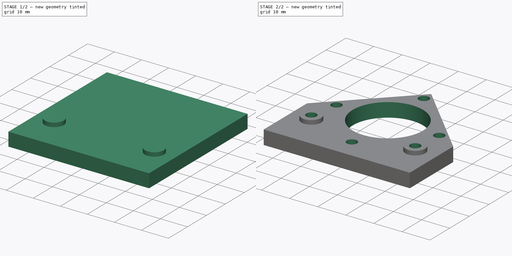
[diagram: build sequence overview — one tinted view per stage of 2, left to right]
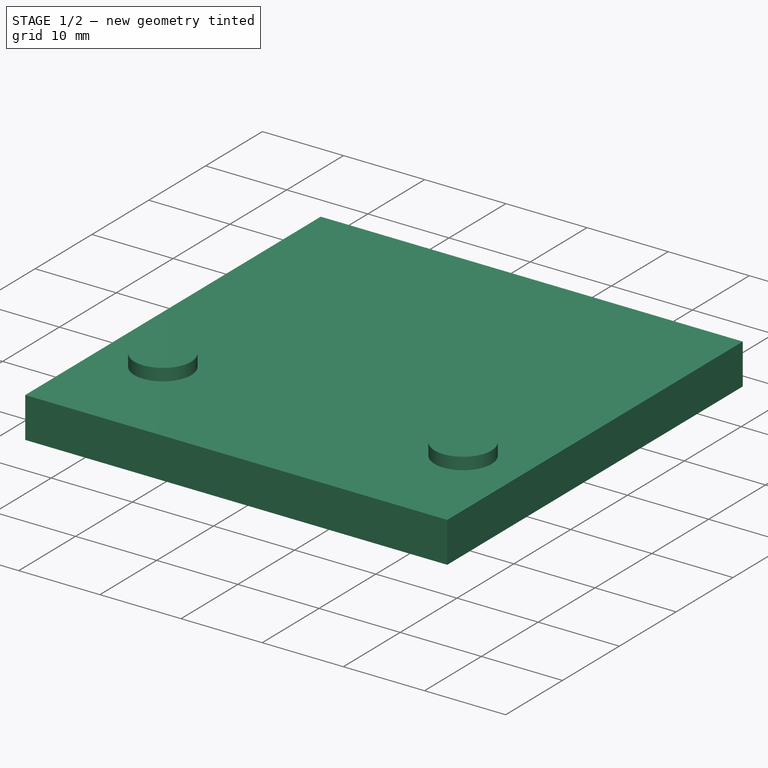
[diagram: stage 1 of 2 — iso view after this stage's code; geometry added in this stage tinted green]
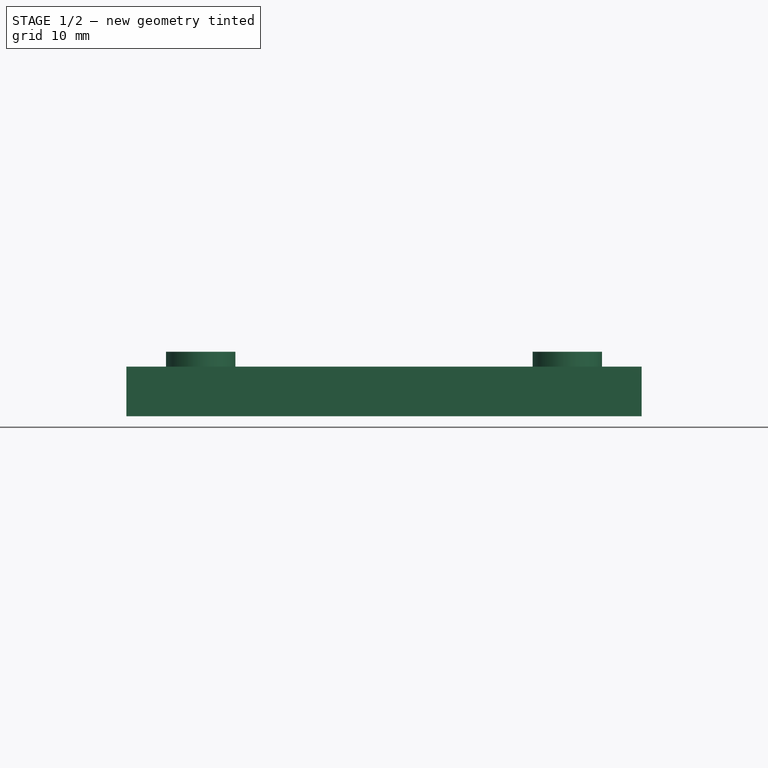
[diagram: stage 1 of 2 — front view after this stage's code; geometry added in this stage tinted green]
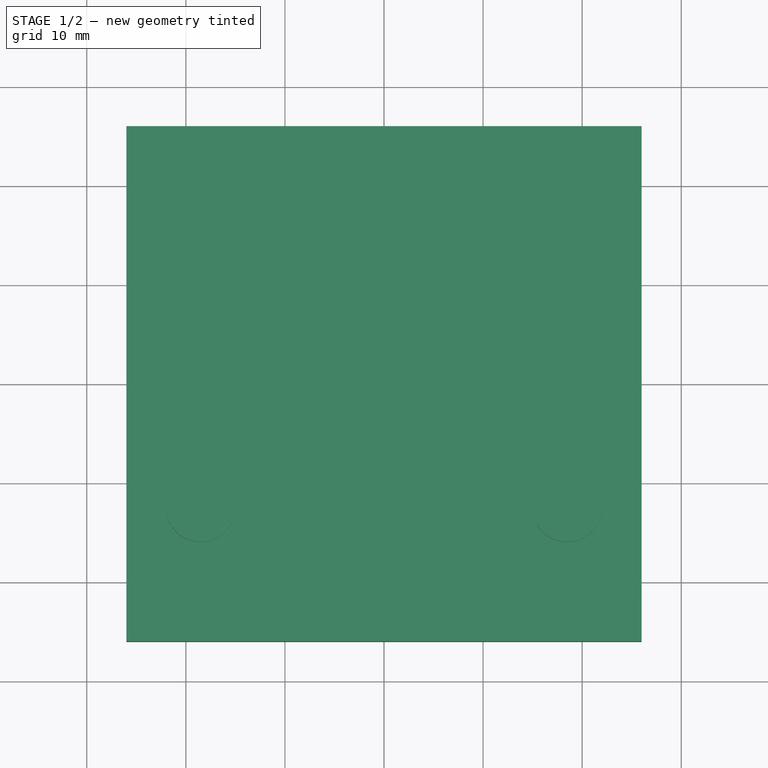
[diagram: stage 1 of 2 — top view after this stage's code; geometry added in this stage tinted green]
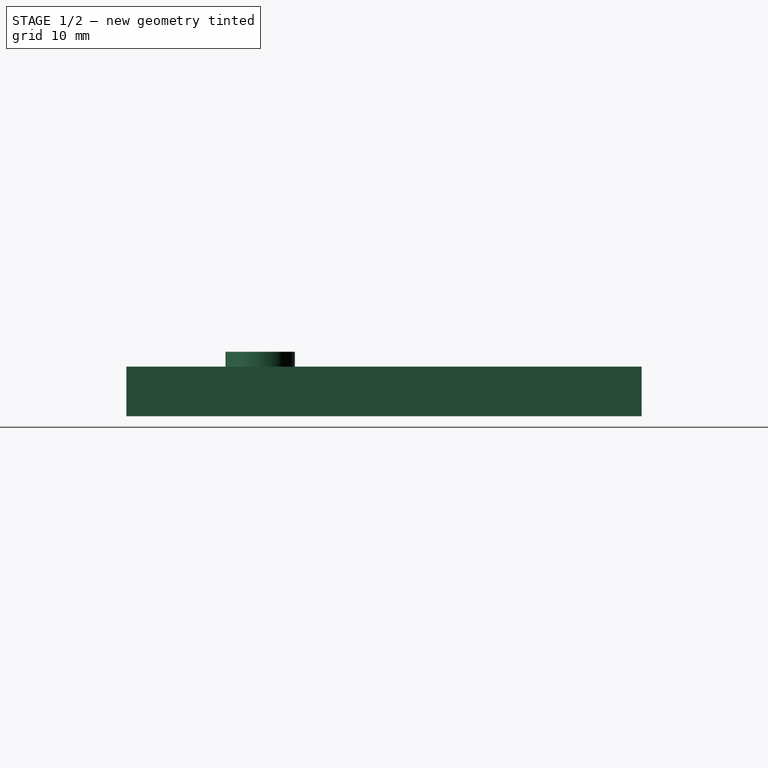
[diagram: stage 1 of 2 — right view after this stage's code; geometry added in this stage tinted green]
FCSTD DOCUMENT  (FreeCAD 0.16R6703 (Git))
Label: pnp head position motor mount
License: All rights reserved
LicenseURL: http://en.wikipedia.org/wiki/All_rights_reserved
objects: Sketcher::SketchObject×4, PartDesign::Pad×2, PartDesign::Pocket×2
note: 12 computed .brp shape members not serialized (recipe doc carries the construction recipe); baked Part::Feature solids carry a one-line shape summary decoded from their .brp

FEATURE [Sketcher::SketchObject] Sketch
  sketch-geometry (4):
    g0: LineSegment StartX=-26 StartY=26 StartZ=0 EndX=26 EndY=26 EndZ=0
    g1: LineSegment StartX=26 StartY=26 StartZ=0 EndX=26 EndY=-26 EndZ=0
    g2: LineSegment StartX=26 StartY=-26 StartZ=0 EndX=-26 EndY=-26 EndZ=0
    g3: LineSegment StartX=-26 StartY=-26 StartZ=0 EndX=-26 EndY=26 EndZ=0
  constraints (12):
    c: Coincident(g0,g1)
    c: Coincident(g1,g2)
    c: Coincident(g2,g3)
    c: Coincident(g3,g0)
    c: Horizontal(g0)
    c: Horizontal(g2)
    c: Vertical(g1)
    c: Vertical(g3)
    c: DistanceX(g0,g0) = 52
    c: Symmetric(g0,g0,g-2)
    c: Equal(g3,g0)
    c: Symmetric(g2,g0,g-1)
FEATURE [PartDesign::Pad] Pad
  Length = 5
  Length2 = 100
  Sketch = -> Sketch
  Type = 0
FEATURE [Sketcher::SketchObject] Sketch005
  Placement = pos=(0,0,5) rot=(0,0,1;0rad)
  Support = -> Pad [Face6]
  sketch-geometry (2):
    g0: Circle CenterX=-18.5 CenterY=-12.5 CenterZ=0 NormalX=0 NormalY=0 NormalZ=1 Radius=3.5
    g1: Circle CenterX=18.5 CenterY=-12.5 CenterZ=0 NormalX=0 NormalY=0 NormalZ=1 Radius=3.5
  constraints (5):
    c: Radius(g1) = 3.5
    c: Equal(g1,g0)
    c: DistanceX(g0,g1) = 37
    c: Symmetric(g0,g1,g-2)
    c: DistanceY(g0,g-1) = 12.5
FEATURE [PartDesign::Pad] Pad001
  Length = 1.5
  Length2 = 100
  Sketch = -> Sketch005
  Type = 0
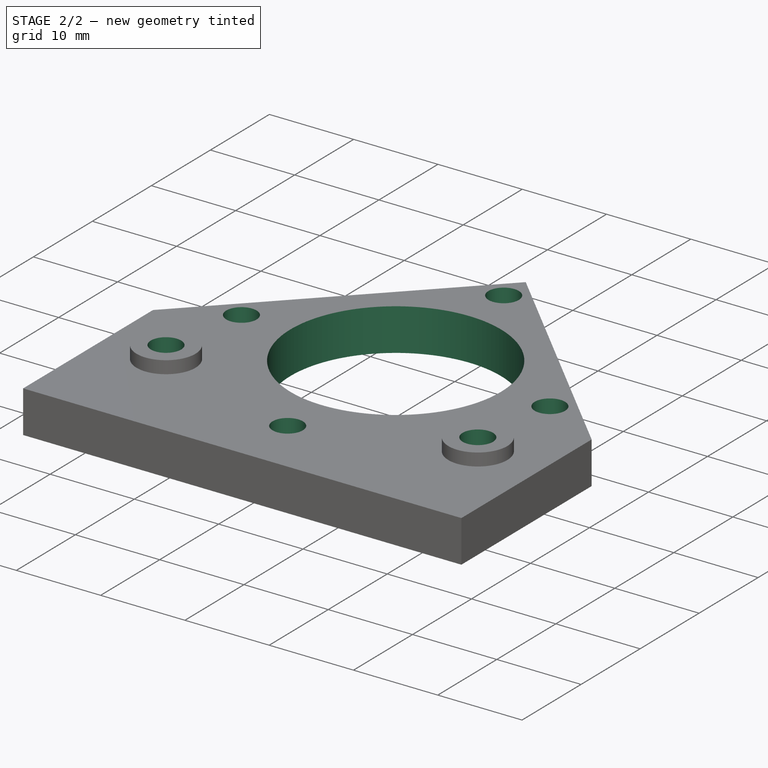
[diagram: stage 2 of 2 — iso view after this stage's code; geometry added in this stage tinted green]
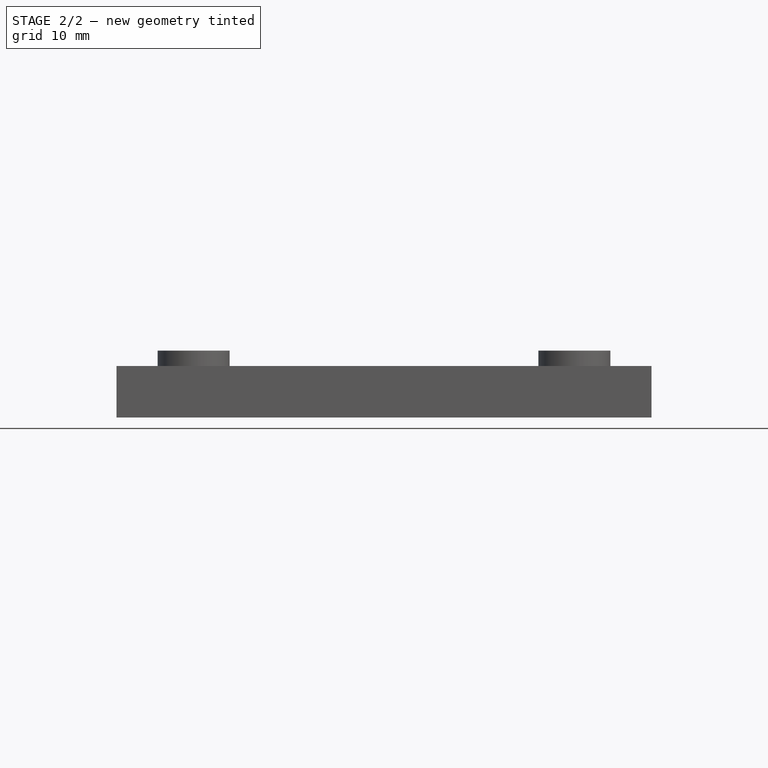
[diagram: stage 2 of 2 — front view after this stage's code; geometry added in this stage tinted green]
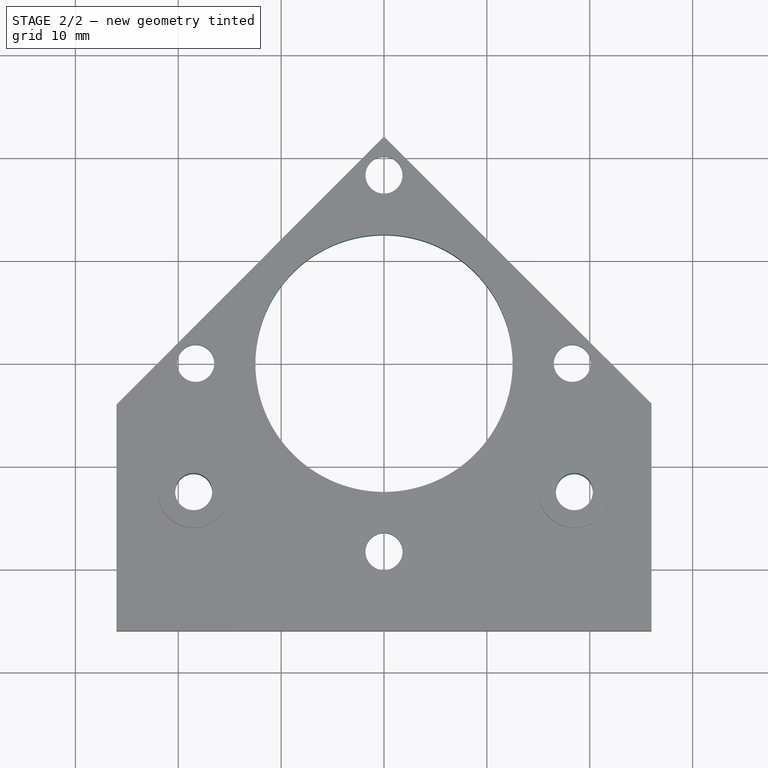
[diagram: stage 2 of 2 — top view after this stage's code; geometry added in this stage tinted green]
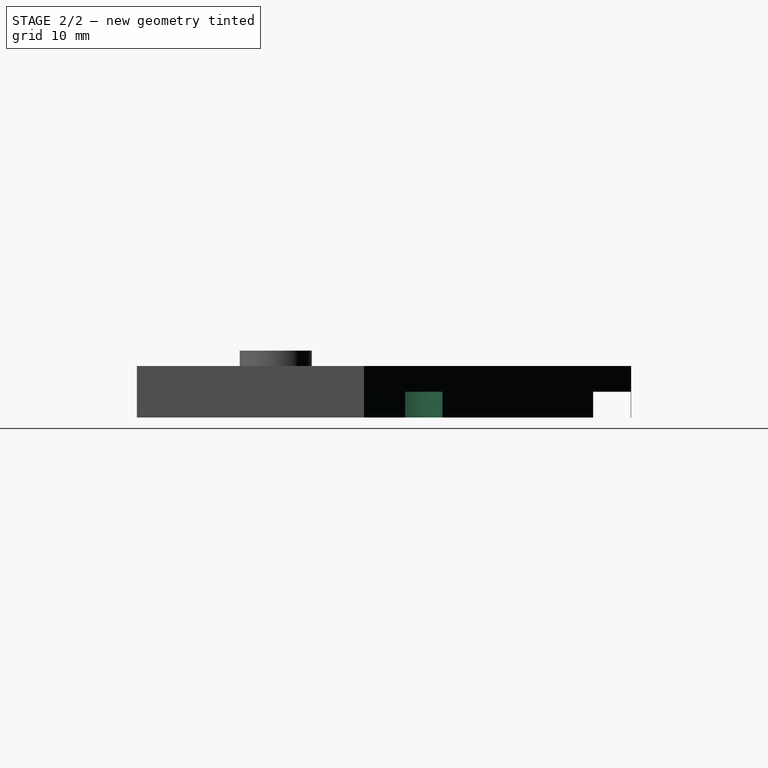
[diagram: stage 2 of 2 — right view after this stage's code; geometry added in this stage tinted green]
FEATURE [Sketcher::SketchObject] Sketch001
  Placement = pos=(0,0,0) rot=(1,0,0;3.14159rad)
  Support = -> Pad001 [Face4]
  sketch-geometry (14):
    g0: Circle CenterX=0 CenterY=0 CenterZ=0 NormalX=0 NormalY=0 NormalZ=1 Radius=12.5
    g1: Circle CenterX=0 CenterY=18.3 CenterZ=0 NormalX=0 NormalY=0 NormalZ=1 Radius=1.8
    g2: Circle CenterX=0 CenterY=-18.3 CenterZ=0 NormalX=0 NormalY=0 NormalZ=1 Radius=1.8
    g3: Circle CenterX=-18.3 CenterY=0 CenterZ=0 NormalX=0 NormalY=0 NormalZ=1 Radius=1.8
    g4: Circle CenterX=18.3 CenterY=0 CenterZ=0 NormalX=0 NormalY=0 NormalZ=1 Radius=1.8
    g5: Circle CenterX=-18.5 CenterY=12.5 CenterZ=0 NormalX=0 NormalY=0 NormalZ=1 Radius=1.8
    g6: Circle CenterX=18.5 CenterY=12.5 CenterZ=0 NormalX=0 NormalY=0 NormalZ=1 Radius=1.8
    g7: LineSegment [constr] StartX=-25.2933 StartY=0 StartZ=0 EndX=0 EndY=25.4257 EndZ=0
    g8: LineSegment [constr] StartX=0 StartY=25.4257 StartZ=0 EndX=25.5587 EndY=0 EndZ=0
    g9: LineSegment StartX=-26 StartY=4 StartZ=0 EndX=0 EndY=-22.0374 EndZ=0
    g10: LineSegment StartX=0 StartY=-22.0374 StartZ=0 EndX=26.0375 EndY=3.96264 EndZ=0
    g11: LineSegment StartX=26.0375 StartY=3.96264 StartZ=0 EndX=26.0375 EndY=-34 EndZ=0
    g12: LineSegment StartX=26.0375 StartY=-34 StartZ=0 EndX=-26 EndY=-34 EndZ=0
    g13: LineSegment StartX=-26 StartY=-34 StartZ=0 EndX=-26 EndY=4 EndZ=0
  constraints (34):
    c: Coincident(g0,g-1)
    c: Radius(g0) = 12.5
    c: PointOnObject(g1,g-2)
    c: PointOnObject(g2,g-2)
    c: PointOnObject(g3,g-1)
    c: PointOnObject(g4,g-1)
    c: Radius(g1) = 1.8
    c: Equal(g1,g4)
    c: Equal(g1,g2)
    c: Equal(g1,g3)
    c: DistanceX(g3,g-1) = 18.3
    c: DistanceX(g-1,g4) = 18.3
    c: DistanceY(g-1,g1) = 18.3
    c: DistanceY(g2,g-1) = 18.3
    c: Radius(g6) = 1.8
    c: Equal(g6,g5)
    c: PointOnObject(g7,g-2)
    c: Coincident(g7,g8)
    c: Angle(g7,g8) = 1.5708
    c: PointOnObject(g7,g-1)
    c: PointOnObject(g8,g-1)
    c: DistanceX(g5,g6) = 37
    c: Symmetric(g5,g6,g-2)
    c: DistanceY(g-1,g5) = 12.5
    c: PointOnObject(g9,g-2)
    c: Coincident(g9,g10)
    c: Coincident(g10,g11)
    c: Vertical(g11)
    c: Horizontal(g12)
    c: Coincident(g12,g13)
    c: Vertical(g13)
    c: Coincident(g13,g9)
    c: Coincident(g12,g11)
    c: Angle(g10,g9) = 1.5708
FEATURE [PartDesign::Pocket] Pocket
  Length = 5
  Sketch = -> Sketch001
  Type = 1
FEATURE [Sketcher::SketchObject] Sketch006
  ExternalGeometry = -> [Pocket]
  Placement = pos=(0,0,0) rot=(1,0,0;3.14159rad)
  Support = -> Pocket [Face2]
  sketch-geometry (4):
    g0: Circle CenterX=-18.3 CenterY=0 CenterZ=0 NormalX=0 NormalY=0 NormalZ=1 Radius=3.7
    g1: Circle CenterX=0 CenterY=18.3 CenterZ=0 NormalX=0 NormalY=0 NormalZ=1 Radius=3.7
    g2: Circle CenterX=18.3 CenterY=0 CenterZ=0 NormalX=0 NormalY=0 NormalZ=1 Radius=3.7
    g3: Circle CenterX=0 CenterY=-18.3 CenterZ=0 NormalX=0 NormalY=0 NormalZ=1 Radius=3.7
  constraints (8):
    c: Coincident(g0,g-4)
    c: Coincident(g1,g-3)
    c: Coincident(g2,g-6)
    c: Coincident(g3,g-5)
    c: Radius(g3) = 3.7
    c: Equal(g3,g2)
    c: Equal(g3,g1)
    c: Equal(g3,g0)
FEATURE [PartDesign::Pocket] Pocket001
  Length = 2.5
  Sketch = -> Sketch006
  Type = 0
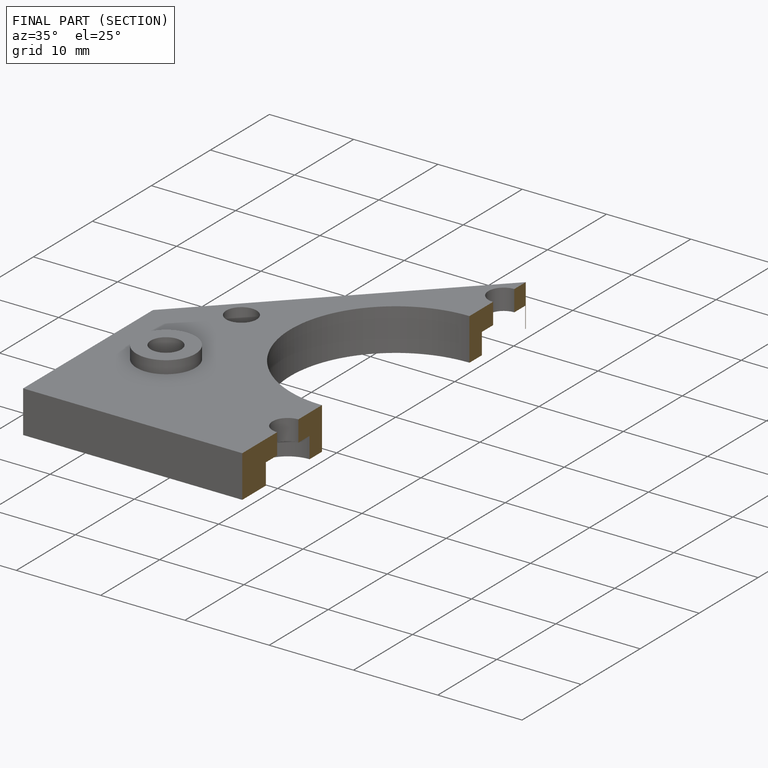
[diagram: finished part — half-section view (interior)]
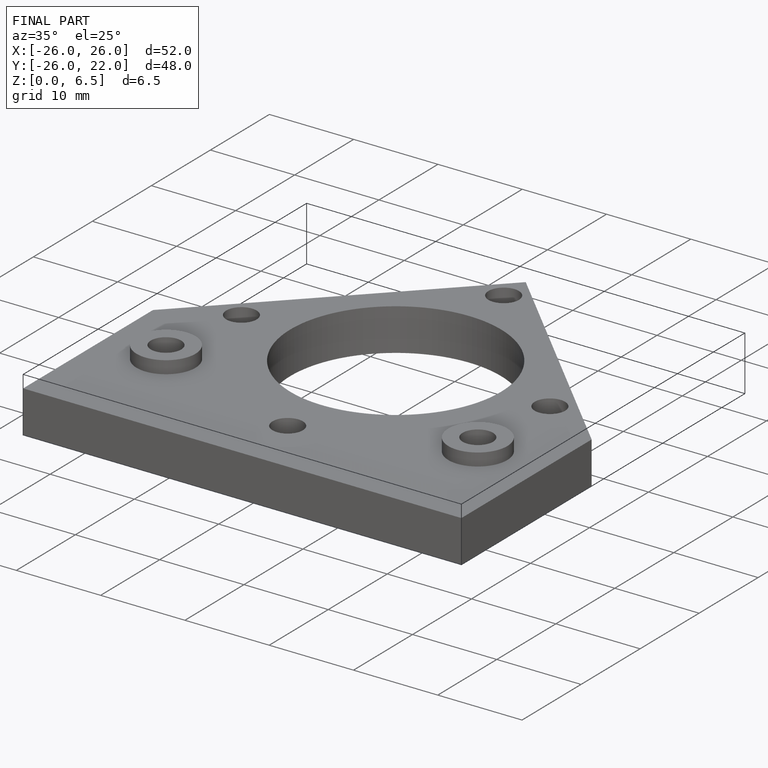
[diagram: finished part — iso view with bounding-box wireframe]
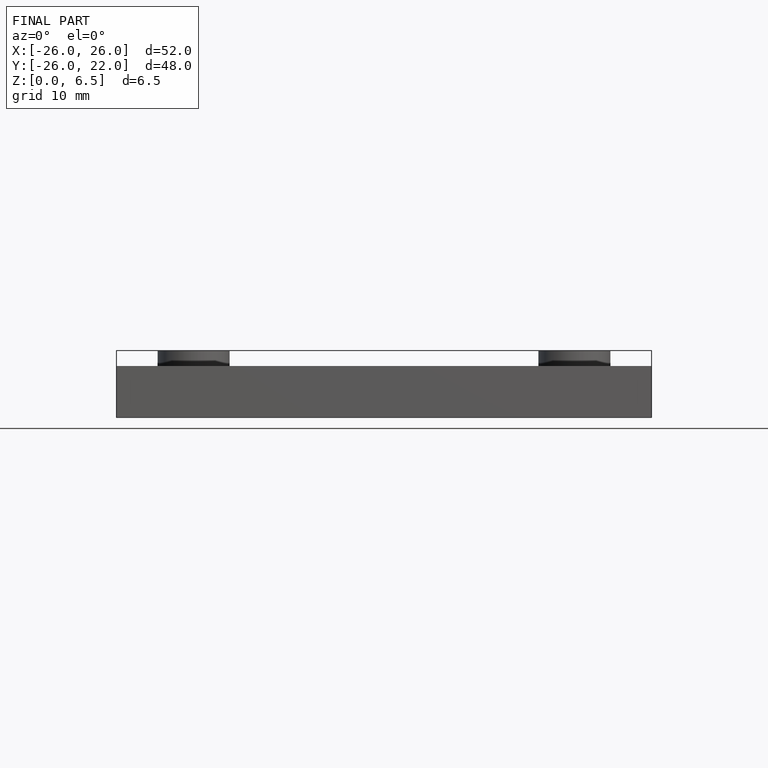
[diagram: finished part — front view with bounding-box wireframe]
